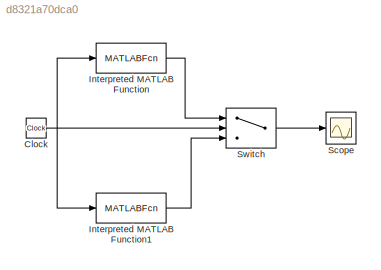
MODEL slx_d8321a70dca0
KIND model
CONFIG AbsTol = auto
CONFIG EnableMultiTasking = off
CONFIG FixedStep = 0.5
CONFIG MaxStep = auto
CONFIG MinStep = auto
CONFIG RelTol = 1e-3
CONFIG SampleTimeConstraint = Unconstrained
CONFIG SolverName = FixedStepAuto
CONFIG StartTime = -9
CONFIG StopTime = 9
BLOCK [Clock] Clock
BLOCK [MATLABFcn] Interpreted MATLAB Function
  MATLABFcn = -3*u*u + 5
  Output1D = off
  Ports = [1, 1]
BLOCK [MATLABFcn] Interpreted MATLAB Function1
  MATLABFcn = 3*u*u + 5
  Ports = [1, 1]
BLOCK [Scope] Scope
  Floating = off
  NumInputPorts = 1
  Ports = [1]
  ScopeSpecificationString = Simulink.scopes.TimeScopeBlockCfg('CurrentConfiguration', extmgr.ConfigurationSet(extmgr.Configuration('Core','General UI',true),extmgr.Configuration('Core','Source UI',true),extmgr.Configuration('Sources','WiredSimulink',true),extmgr.Configuration('Visuals','Time Domain',true,'SerializedDisplays',{struct('MinYLimReal','-298.75','MaxYLimReal','308.75','YLabelReal','','MinYLimMag',' 0.00000','MaxYL...<+1450ch>
BLOCK [Switch] Switch
  InputSameDT = off
  SaturateOnIntegerOverflow = off
NET Clock:1 -> Interpreted MATLAB Function1:1, Interpreted MATLAB Function:1, Switch:2
LINE Interpreted MATLAB Function1:1 -> Switch:3
LINE Interpreted MATLAB Function:1 -> Switch:1
LINE Switch:1 -> Scope:1
note: NET lines group one-source signal fan-out (src -> all destinations, sorted); 1:1 wires keep LINE
